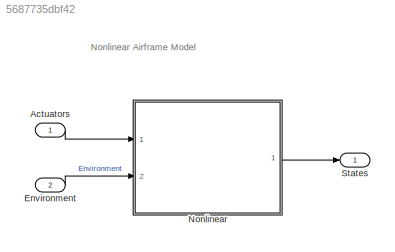
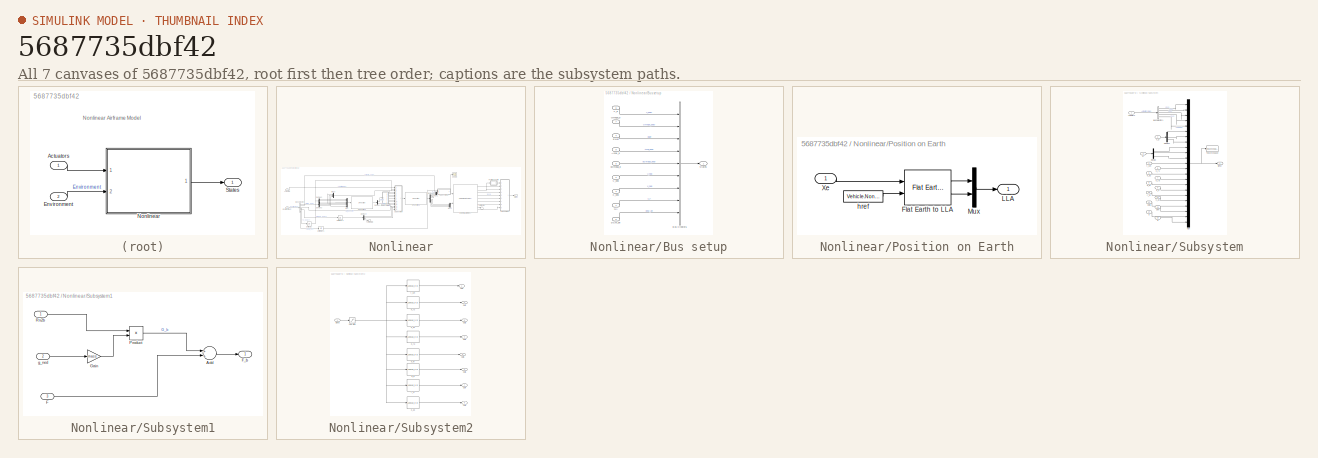
[diagram: thumbnail index - all 7 canvases of the model, root first then tree order]
MODEL slx_5687735dbf42
KIND model
CONFIG AbsTol = auto
CONFIG EnableMultiTasking = on
CONFIG FixedStep = Ts
CONFIG MaxStep = auto
CONFIG MinStep = auto
CONFIG RelTol = 1e-3
CONFIG SampleTimeConstraint = Unconstrained
CONFIG Solver = ode3
CONFIG SolverName = ode3
CONFIG StartTime = 0
CONFIG StopTime = 50
BLOCK [Inport] Actuators
  IconDisplay = Port number
  OutDataTypeStr = Bus: ActuatorsBus
BLOCK [Inport] Environment
  BusOutputAsStruct = on
  IconDisplay = Port number
  OutDataTypeStr = Bus: EnvironmentBus
  Port = 2
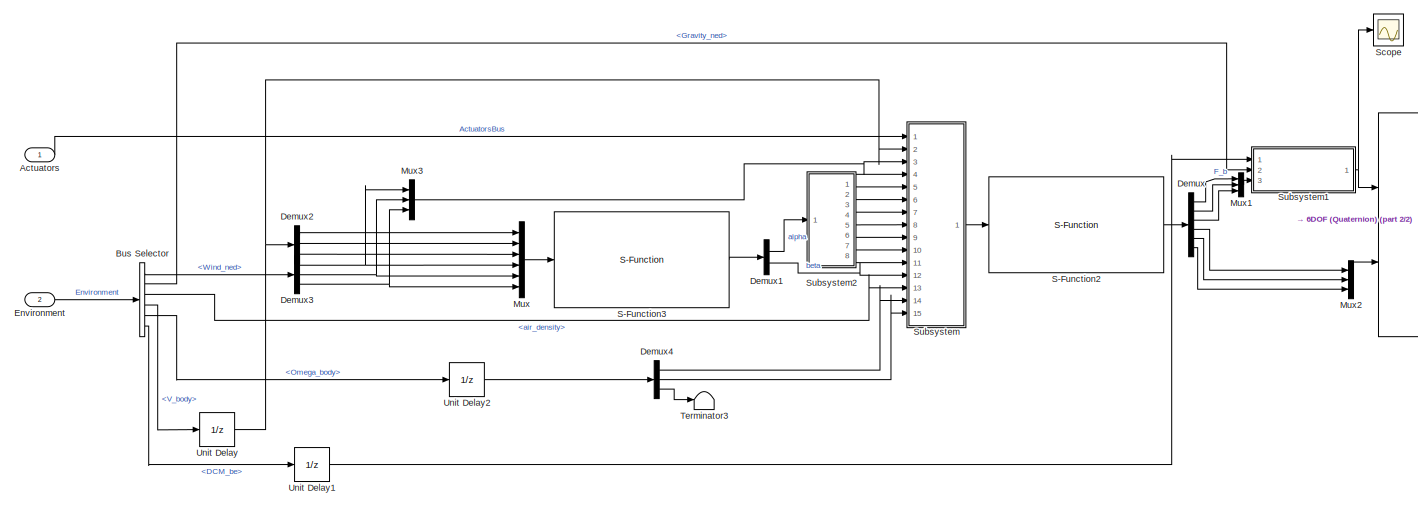
[diagram: Nonlinear - part 1/2, most of the canvas]
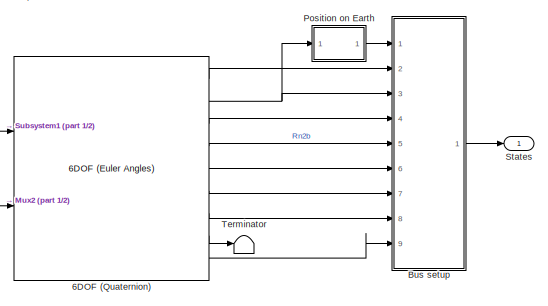
[diagram: Nonlinear - part 2/2, middle right region]
BLOCK [SubSystem] Nonlinear
  MinAlgLoopOccurrences = on
  Ports = [2, 1]
  RequestExecContextInheritance = off
  TreatAsAtomicUnit = on
BLOCK [Reference] Nonlinear/6DOF (Quaternion)  REF=shared6dof/6DOF (Euler Angles)
  Ports = [2, 9]
  SourceBlock = shared6dof/6DOF (Euler Angles)
  SourceProductBaseCode = AE
  SourceProductName = Aerospace Blockset
  SourceType = 6DOF EoM (Body Axis)
BLOCK [Inport] Nonlinear/Actuators
  IconDisplay = Port number
  OutDataTypeStr = Bus: ActuatorsBus
BLOCK [BusSelector] Nonlinear/Bus Selector
  OutputAsBus = off
  OutputSignals = Wind_ned,Gravity_ned,AtmosphereBus.air_density,StatesBus.V_body,StatesBus.Omega_body,StatesBus.DCM_be
  Ports = [1, 6]
BLOCK [SubSystem] Nonlinear/Bus setup
  Ports = [9, 1]
  RequestExecContextInheritance = off
BLOCK [Inport] Nonlinear/Bus setup/Accel_b
  IconDisplay = Port number
  Port = 9
  PortDimensions = 3
BLOCK [BusCreator] Nonlinear/Bus setup/Bus Creator5
  DisplayOption = bar
  InheritFromInputs = on
  Inputs = 9
  NonVirtualBus = on
  OutDataTypeStr = Bus: StatesBus
  Ports = [9, 1]
BLOCK [Inport] Nonlinear/Bus setup/DCM_be
  IconDisplay = Port number
  Port = 5
  PortDimensions = [3 3]
BLOCK [Inport] Nonlinear/Bus setup/Euler
  IconDisplay = Port number
  Port = 4
  PortDimensions = 3
BLOCK [Inport] Nonlinear/Bus setup/LLA
  IconDisplay = Port number
  PortDimensions = 3
BLOCK [Inport] Nonlinear/Bus setup/Omega_b
  IconDisplay = Port number
  Port = 7
  PortDimensions = 3
BLOCK [Outport] Nonlinear/Bus setup/States
  IconDisplay = Port number
BLOCK [Inport] Nonlinear/Bus setup/V_b
  IconDisplay = Port number
  Port = 6
  PortDimensions = 3
BLOCK [Inport] Nonlinear/Bus setup/V_ned
  IconDisplay = Port number
  Port = 2
  PortDimensions = 3
BLOCK [Inport] Nonlinear/Bus setup/X_ned
  IconDisplay = Port number
  Port = 3
  PortDimensions = 3
BLOCK [Inport] Nonlinear/Bus setup/dOmega_b
  IconDisplay = Port number
  Port = 8
  PortDimensions = 3
BLOCK [Demux] Nonlinear/Demux
  DisplayOption = bar
  Outputs = 6
  Ports = [1, 6]
BLOCK [Demux] Nonlinear/Demux1
  DisplayOption = bar
  Outputs = 2
  Ports = [1, 2]
BLOCK [Demux] Nonlinear/Demux2
  DisplayOption = bar
  Outputs = 3
  Ports = [1, 3]
BLOCK [Demux] Nonlinear/Demux3
  DisplayOption = bar
  Outputs = 3
  Ports = [1, 3]
BLOCK [Demux] Nonlinear/Demux4
  DisplayOption = bar
  Outputs = 3
  Ports = [1, 3]
BLOCK [Inport] Nonlinear/Environment
  IconDisplay = Port number
  OutDataTypeStr = Bus: EnvironmentBus
  Port = 2
BLOCK [Mux] Nonlinear/Mux
  DisplayOption = bar
  Inputs = 6
  Ports = [6, 1]
BLOCK [Mux] Nonlinear/Mux1
  DisplayOption = bar
  Inputs = 3
  Ports = [3, 1]
BLOCK [Mux] Nonlinear/Mux2
  DisplayOption = bar
  Inputs = 3
  Ports = [3, 1]
BLOCK [Mux] Nonlinear/Mux3
  DisplayOption = bar
  Inputs = 3
  Ports = [3, 1]
BLOCK [SubSystem] Nonlinear/Position on Earth
  Ports = [1, 1]
  Priority = 1
  RequestExecContextInheritance = off
  TreatAsAtomicUnit = on
BLOCK [Reference] Nonlinear/Position on Earth/Flat Earth to LLA  REF=aerolibtransform2/Flat Earth to LLA
  Ports = [2, 2]
  SourceBlock = aerolibtransform2/Flat Earth to LLA
  SourceProductBaseCode = AE
  SourceProductName = Aerospace Blockset
  SourceType = Flat Earth to LLA
BLOCK [Outport] Nonlinear/Position on Earth/LLA
  IconDisplay = Port number
BLOCK [Mux] Nonlinear/Position on Earth/Mux
  DisplayOption = bar
  Inputs = 2
  Ports = [2, 1]
BLOCK [Inport] Nonlinear/Position on Earth/Xe
  IconDisplay = Port number
BLOCK [Constant] Nonlinear/Position on Earth/href
  Value = Vehicle.Nonlinear.Nonlinear.PositionOnEarth.href
BLOCK [S-Function] Nonlinear/S-Function2
  EnableBusSupport = off
  FunctionName = s_toFM
  Ports = [1, 1]
  SFcnIsStateOwnerBlock = off
  SFunctionDeploymentMode = off
BLOCK [S-Function] Nonlinear/S-Function3
  EnableBusSupport = off
  FunctionName = s_toalphabeta
  Ports = [1, 1]
  SFcnIsStateOwnerBlock = off
  SFunctionDeploymentMode = off
BLOCK [Scope] Nonlinear/Scope
  Floating = off
  NumInputPorts = 1
  Ports = [1]
  ScopeSpecificationString = Simulink.scopes.TimeScopeBlockCfg('CurrentConfiguration', extmgr.ConfigurationSet(extmgr.Configuration('Core','General UI',true),extmgr.Configuration('Core','Source UI',true),extmgr.Configuration('Sources','WiredSimulink',true),extmgr.Configuration('Visuals','Time Domain',true,'SerializedDisplays',{struct('MinYLimReal','-101077623751.39604','MaxYLimReal','157971719491.96811','YLabelReal','','MinYL...<+1518ch>
BLOCK [Outport] Nonlinear/States
  IconDisplay = Port number
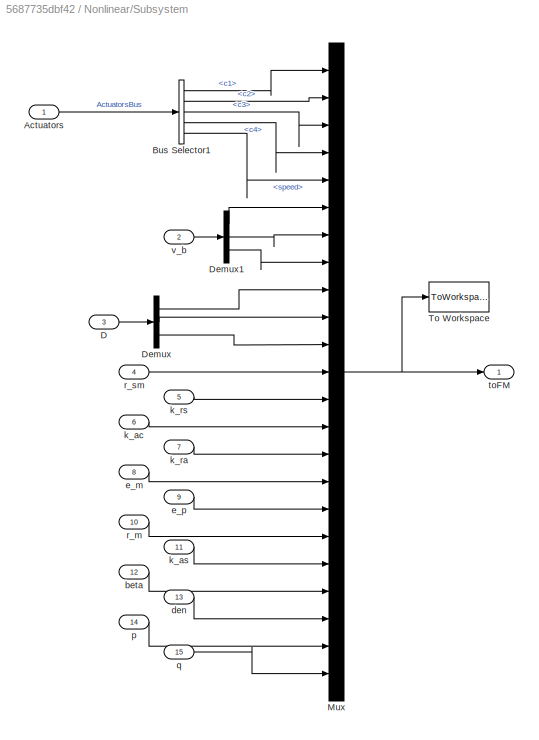
BLOCK [SubSystem] Nonlinear/Subsystem
  Ports = [15, 1]
  RequestExecContextInheritance = off
BLOCK [Inport] Nonlinear/Subsystem/Actuators
  IconDisplay = Port number
  OutDataTypeStr = Bus: ActuatorsBus
BLOCK [BusSelector] Nonlinear/Subsystem/Bus Selector1
  OutputAsBus = off
  OutputSignals = c1,c2,c3,c4,speed
  Ports = [1, 5]
BLOCK [Inport] Nonlinear/Subsystem/D
  IconDisplay = Port number
  Port = 3
BLOCK [Demux] Nonlinear/Subsystem/Demux
  DisplayOption = bar
  Outputs = 3
  Ports = [1, 3]
BLOCK [Demux] Nonlinear/Subsystem/Demux1
  DisplayOption = bar
  Outputs = 3
  Ports = [1, 3]
BLOCK [Mux] Nonlinear/Subsystem/Mux
  DisplayOption = bar
  Inputs = 23
  Ports = [23, 1]
BLOCK [ToWorkspace] Nonlinear/Subsystem/To Workspace
  FixptAsFi = on
  MaxDataPoints = inf
  Ports = [1]
  SampleTime = -1
  Save2DSignal = 3-D array (concatenate along third dimension)
  SaveFormat = Timeseries
  VariableName = simout
BLOCK [Inport] Nonlinear/Subsystem/beta
  IconDisplay = Port number
  Port = 12
BLOCK [Inport] Nonlinear/Subsystem/den
  IconDisplay = Port number
  Port = 13
BLOCK [Inport] Nonlinear/Subsystem/e_m
  IconDisplay = Port number
  Port = 8
BLOCK [Inport] Nonlinear/Subsystem/e_p
  IconDisplay = Port number
  Port = 9
BLOCK [Inport] Nonlinear/Subsystem/k_ac
  IconDisplay = Port number
  Port = 6
BLOCK [Inport] Nonlinear/Subsystem/k_as
  IconDisplay = Port number
  Port = 11
BLOCK [Inport] Nonlinear/Subsystem/k_ra
  IconDisplay = Port number
  Port = 7
BLOCK [Inport] Nonlinear/Subsystem/k_rs
  IconDisplay = Port number
  Port = 5
BLOCK [Inport] Nonlinear/Subsystem/p
  IconDisplay = Port number
  Port = 14
BLOCK [Inport] Nonlinear/Subsystem/q
  IconDisplay = Port number
  Port = 15
BLOCK [Inport] Nonlinear/Subsystem/r_m
  IconDisplay = Port number
  Port = 10
BLOCK [Inport] Nonlinear/Subsystem/r_sm
  IconDisplay = Port number
  Port = 4
BLOCK [Outport] Nonlinear/Subsystem/toFM
  IconDisplay = Port number
BLOCK [Inport] Nonlinear/Subsystem/v_b
  IconDisplay = Port number
  Port = 2
BLOCK [SubSystem] Nonlinear/Subsystem1
  Ports = [3, 1]
  RequestExecContextInheritance = off
BLOCK [Sum] Nonlinear/Subsystem1/Add
  InputSameDT = off
  OutDataTypeStr = Inherit: Inherit via internal rule
  Ports = [2, 1]
  SaturateOnIntegerOverflow = off
BLOCK [Inport] Nonlinear/Subsystem1/F
  IconDisplay = Port number
  Port = 3
BLOCK [Outport] Nonlinear/Subsystem1/F_b
  IconDisplay = Port number
BLOCK [Gain] Nonlinear/Subsystem1/Gain
  Gain = mass
  OutDataTypeStr = Inherit: Inherit via internal rule
  ParamDataTypeStr = Inherit: Inherit via internal rule
  SaturateOnIntegerOverflow = off
BLOCK [Product] Nonlinear/Subsystem1/Product
  InputSameDT = off
  Multiplication = Matrix(*)
  OutDataTypeStr = Inherit: Inherit via internal rule
  Ports = [2, 1]
  RndMeth = Floor
  SaturateOnIntegerOverflow = off
BLOCK [Inport] Nonlinear/Subsystem1/Rn2b
  IconDisplay = Port number
BLOCK [Inport] Nonlinear/Subsystem1/g_ned
  IconDisplay = Port number
  Port = 2
BLOCK [SubSystem] Nonlinear/Subsystem2
  Ports = [1, 8]
  RequestExecContextInheritance = off
BLOCK [Outport] Nonlinear/Subsystem2/Out1
  IconDisplay = Port number
BLOCK [Outport] Nonlinear/Subsystem2/Out2
  IconDisplay = Port number
  Port = 2
BLOCK [Outport] Nonlinear/Subsystem2/Out3
  IconDisplay = Port number
  Port = 3
BLOCK [Outport] Nonlinear/Subsystem2/Out4
  IconDisplay = Port number
  Port = 4
BLOCK [Outport] Nonlinear/Subsystem2/Out5
  IconDisplay = Port number
  Port = 5
BLOCK [Outport] Nonlinear/Subsystem2/Out6
  IconDisplay = Port number
  Port = 6
BLOCK [Outport] Nonlinear/Subsystem2/Out7
  IconDisplay = Port number
  Port = 7
BLOCK [Outport] Nonlinear/Subsystem2/Out8
  IconDisplay = Port number
  Port = 8
BLOCK [Saturate] Nonlinear/Subsystem2/Saturation
  InputPortMap = u0
  LowerLimit = 0
  Ports = [1, 1]
  UpperLimit = 3.14159
BLOCK [Inport] Nonlinear/Subsystem2/alpha
  IconDisplay = Port number
BLOCK [Lookup_n-D] Nonlinear/Subsystem2/e_m
  BreakpointsForDimension1 = e_m_X
  DiagnosticForOutOfRangeInput = Warning
  ExtrapMethod = Clip
  InternalRulePriority = Speed
  NumberOfTableDimensions = 1
  Ports = [1, 1]
  RndMeth = Simplest
  Table = e_m_Y
BLOCK [Lookup_n-D] Nonlinear/Subsystem2/e_p
  BreakpointsForDimension1 = e_p_X
  DiagnosticForOutOfRangeInput = Warning
  ExtrapMethod = Clip
  InternalRulePriority = Speed
  NumberOfTableDimensions = 1
  Ports = [1, 1]
  RndMeth = Simplest
  Table = e_p_Y
BLOCK [Lookup_n-D] Nonlinear/Subsystem2/k_ac
  BreakpointsForDimension1 = k_ac_X
  DiagnosticForOutOfRangeInput = Warning
  ExtrapMethod = Clip
  InternalRulePriority = Speed
  NumberOfTableDimensions = 1
  Ports = [1, 1]
  RndMeth = Simplest
  Table = k_ac_Y
BLOCK [Lookup_n-D] Nonlinear/Subsystem2/k_as
  BreakpointsForDimension1 = k_as_X
  DiagnosticForOutOfRangeInput = Warning
  ExtrapMethod = Clip
  InternalRulePriority = Speed
  NumberOfTableDimensions = 1
  Ports = [1, 1]
  RndMeth = Simplest
  Table = k_as_Y
BLOCK [Lookup_n-D] Nonlinear/Subsystem2/k_ra
  BreakpointsForDimension1 = k_ra_X
  DiagnosticForOutOfRangeInput = Warning
  ExtrapMethod = Clip
  InternalRulePriority = Speed
  NumberOfTableDimensions = 1
  Ports = [1, 1]
  RndMeth = Simplest
  Table = k_ra_Y
BLOCK [Lookup_n-D] Nonlinear/Subsystem2/k_rs 
  BreakpointsForDimension1 = k_rs_X
  DiagnosticForOutOfRangeInput = Warning
  ExtrapMethod = Clip
  InternalRulePriority = Speed
  NumberOfTableDimensions = 1
  Ports = [1, 1]
  RndMeth = Simplest
  Table = k_rs_Y
BLOCK [Lookup_n-D] Nonlinear/Subsystem2/r_m
  BreakpointsForDimension1 = r_m_X
  DiagnosticForOutOfRangeInput = Warning
  ExtrapMethod = Clip
  InternalRulePriority = Speed
  NumberOfTableDimensions = 1
  Ports = [1, 1]
  RndMeth = Simplest
  Table = r_m_Y
BLOCK [Lookup_n-D] Nonlinear/Subsystem2/r_sm
  BreakpointsForDimension1 = r_sm_X
  DiagnosticForOutOfRangeInput = Warning
  ExtrapMethod = Clip
  InternalRulePriority = Speed
  NumberOfTableDimensions = 1
  Ports = [1, 1]
  RndMeth = Simplest
  Table = r_sm_Y
BLOCK [Terminator] Nonlinear/Terminator
BLOCK [Terminator] Nonlinear/Terminator3
BLOCK [UnitDelay] Nonlinear/Unit Delay
  InputProcessing = Elements as channels (sample based)
  SampleTime = -1
BLOCK [UnitDelay] Nonlinear/Unit Delay1
  InputProcessing = Elements as channels (sample based)
  SampleTime = -1
BLOCK [UnitDelay] Nonlinear/Unit Delay2
  InputProcessing = Elements as channels (sample based)
  SampleTime = -1
BLOCK [Outport] States
  BusOutputAsStruct = on
  IconDisplay = Port number
  OutDataTypeStr = Bus: StatesBus
ANNOTATION (root): Nonlinear Airframe Model
LINE Actuators:1 -> Nonlinear:1
LINE Environment:1 -> Nonlinear:2
LINE Nonlinear/6DOF (Quaternion):1 -> Nonlinear/Bus setup:2
NET Nonlinear/6DOF (Quaternion):2 -> Nonlinear/Bus setup:3, Nonlinear/Position on Earth:1
LINE Nonlinear/6DOF (Quaternion):3 -> Nonlinear/Bus setup:4
LINE Nonlinear/6DOF (Quaternion):4 -> Nonlinear/Bus setup:5
LINE Nonlinear/6DOF (Quaternion):5 -> Nonlinear/Bus setup:6
LINE Nonlinear/6DOF (Quaternion):6 -> Nonlinear/Bus setup:7
LINE Nonlinear/6DOF (Quaternion):7 -> Nonlinear/Bus setup:8
LINE Nonlinear/6DOF (Quaternion):8 -> Nonlinear/Terminator:1
LINE Nonlinear/6DOF (Quaternion):9 -> Nonlinear/Bus setup:9
LINE Nonlinear/Actuators:1 -> Nonlinear/Subsystem:1
LINE Nonlinear/Bus Selector:1 -> Nonlinear/Demux3:1
LINE Nonlinear/Bus Selector:2 -> Nonlinear/Subsystem1:2
LINE Nonlinear/Bus Selector:3 -> Nonlinear/Subsystem:13
LINE Nonlinear/Bus Selector:4 -> Nonlinear/Unit Delay:1
LINE Nonlinear/Bus Selector:5 -> Nonlinear/Unit Delay2:1
LINE Nonlinear/Bus Selector:6 -> Nonlinear/Unit Delay1:1
LINE Nonlinear/Bus setup/Accel_b:1 -> Nonlinear/Bus setup/Bus Creator5:4
LINE Nonlinear/Bus setup/Bus Creator5:1 -> Nonlinear/Bus setup/States:1
LINE Nonlinear/Bus setup/DCM_be:1 -> Nonlinear/Bus setup/Bus Creator5:9
LINE Nonlinear/Bus setup/Euler:1 -> Nonlinear/Bus setup/Bus Creator5:3
LINE Nonlinear/Bus setup/LLA:1 -> Nonlinear/Bus setup/Bus Creator5:8
LINE Nonlinear/Bus setup/Omega_b:1 -> Nonlinear/Bus setup/Bus Creator5:2
LINE Nonlinear/Bus setup/V_b:1 -> Nonlinear/Bus setup/Bus Creator5:1
LINE Nonlinear/Bus setup/V_ned:1 -> Nonlinear/Bus setup/Bus Creator5:6
LINE Nonlinear/Bus setup/X_ned:1 -> Nonlinear/Bus setup/Bus Creator5:7
LINE Nonlinear/Bus setup/dOmega_b:1 -> Nonlinear/Bus setup/Bus Creator5:5
LINE Nonlinear/Bus setup:1 -> Nonlinear/States:1
LINE Nonlinear/Demux1:1 -> Nonlinear/Subsystem2:1
LINE Nonlinear/Demux1:2 -> Nonlinear/Subsystem:12
LINE Nonlinear/Demux2:1 -> Nonlinear/Mux:1
LINE Nonlinear/Demux2:2 -> Nonlinear/Mux:2
LINE Nonlinear/Demux2:3 -> Nonlinear/Mux:3
NET Nonlinear/Demux3:1 -> Nonlinear/Mux3:1, Nonlinear/Mux:4
NET Nonlinear/Demux3:2 -> Nonlinear/Mux3:2, Nonlinear/Mux:5
NET Nonlinear/Demux3:3 -> Nonlinear/Mux3:3, Nonlinear/Mux:6
LINE Nonlinear/Demux4:1 -> Nonlinear/Subsystem:14
LINE Nonlinear/Demux4:2 -> Nonlinear/Subsystem:15
LINE Nonlinear/Demux4:3 -> Nonlinear/Terminator3:1
LINE Nonlinear/Demux:1 -> Nonlinear/Mux1:1
LINE Nonlinear/Demux:2 -> Nonlinear/Mux1:2
LINE Nonlinear/Demux:3 -> Nonlinear/Mux1:3
LINE Nonlinear/Demux:4 -> Nonlinear/Mux2:1
LINE Nonlinear/Demux:5 -> Nonlinear/Mux2:2
LINE Nonlinear/Demux:6 -> Nonlinear/Mux2:3
LINE Nonlinear/Environment:1 -> Nonlinear/Bus Selector:1
LINE Nonlinear/Mux1:1 -> Nonlinear/Subsystem1:3
LINE Nonlinear/Mux2:1 -> Nonlinear/6DOF (Quaternion):2
LINE Nonlinear/Mux3:1 -> Nonlinear/Subsystem:3
LINE Nonlinear/Mux:1 -> Nonlinear/S-Function3:1
LINE Nonlinear/Position on Earth/Flat Earth to LLA:1 -> Nonlinear/Position on Earth/Mux:1
LINE Nonlinear/Position on Earth/Flat Earth to LLA:2 -> Nonlinear/Position on Earth/Mux:2
LINE Nonlinear/Position on Earth/Mux:1 -> Nonlinear/Position on Earth/LLA:1
LINE Nonlinear/Position on Earth/Xe:1 -> Nonlinear/Position on Earth/Flat Earth to LLA:1
LINE Nonlinear/Position on Earth/href:1 -> Nonlinear/Position on Earth/Flat Earth to LLA:2
LINE Nonlinear/Position on Earth:1 -> Nonlinear/Bus setup:1
LINE Nonlinear/S-Function2:1 -> Nonlinear/Demux:1
LINE Nonlinear/S-Function3:1 -> Nonlinear/Demux1:1
LINE Nonlinear/Subsystem/Actuators:1 -> Nonlinear/Subsystem/Bus Selector1:1
LINE Nonlinear/Subsystem/Bus Selector1:1 -> Nonlinear/Subsystem/Mux:1
LINE Nonlinear/Subsystem/Bus Selector1:2 -> Nonlinear/Subsystem/Mux:2
LINE Nonlinear/Subsystem/Bus Selector1:3 -> Nonlinear/Subsystem/Mux:3
LINE Nonlinear/Subsystem/Bus Selector1:4 -> Nonlinear/Subsystem/Mux:4
LINE Nonlinear/Subsystem/Bus Selector1:5 -> Nonlinear/Subsystem/Mux:5
LINE Nonlinear/Subsystem/D:1 -> Nonlinear/Subsystem/Demux:1
LINE Nonlinear/Subsystem/Demux1:1 -> Nonlinear/Subsystem/Mux:6
LINE Nonlinear/Subsystem/Demux1:2 -> Nonlinear/Subsystem/Mux:7
LINE Nonlinear/Subsystem/Demux1:3 -> Nonlinear/Subsystem/Mux:8
LINE Nonlinear/Subsystem/Demux:1 -> Nonlinear/Subsystem/Mux:9
LINE Nonlinear/Subsystem/Demux:2 -> Nonlinear/Subsystem/Mux:10
LINE Nonlinear/Subsystem/Demux:3 -> Nonlinear/Subsystem/Mux:11
NET Nonlinear/Subsystem/Mux:1 -> Nonlinear/Subsystem/To Workspace:1, Nonlinear/Subsystem/toFM:1
LINE Nonlinear/Subsystem/beta:1 -> Nonlinear/Subsystem/Mux:20
LINE Nonlinear/Subsystem/den:1 -> Nonlinear/Subsystem/Mux:21
LINE Nonlinear/Subsystem/e_m:1 -> Nonlinear/Subsystem/Mux:16
LINE Nonlinear/Subsystem/e_p:1 -> Nonlinear/Subsystem/Mux:17
LINE Nonlinear/Subsystem/k_ac:1 -> Nonlinear/Subsystem/Mux:14
LINE Nonlinear/Subsystem/k_as:1 -> Nonlinear/Subsystem/Mux:19
LINE Nonlinear/Subsystem/k_ra:1 -> Nonlinear/Subsystem/Mux:15
LINE Nonlinear/Subsystem/k_rs:1 -> Nonlinear/Subsystem/Mux:13
LINE Nonlinear/Subsystem/p:1 -> Nonlinear/Subsystem/Mux:22
LINE Nonlinear/Subsystem/q:1 -> Nonlinear/Subsystem/Mux:23
LINE Nonlinear/Subsystem/r_m:1 -> Nonlinear/Subsystem/Mux:18
LINE Nonlinear/Subsystem/r_sm:1 -> Nonlinear/Subsystem/Mux:12
LINE Nonlinear/Subsystem/v_b:1 -> Nonlinear/Subsystem/Demux1:1
LINE Nonlinear/Subsystem1/Add:1 -> Nonlinear/Subsystem1/F_b:1
LINE Nonlinear/Subsystem1/F:1 -> Nonlinear/Subsystem1/Add:2
LINE Nonlinear/Subsystem1/Gain:1 -> Nonlinear/Subsystem1/Product:2
LINE Nonlinear/Subsystem1/Product:1 -> Nonlinear/Subsystem1/Add:1
LINE Nonlinear/Subsystem1/Rn2b:1 -> Nonlinear/Subsystem1/Product:1
LINE Nonlinear/Subsystem1/g_ned:1 -> Nonlinear/Subsystem1/Gain:1
NET Nonlinear/Subsystem1:1 -> Nonlinear/6DOF (Quaternion):1, Nonlinear/Scope:1
NET Nonlinear/Subsystem2/Saturation:1 -> Nonlinear/Subsystem2/e_m:1, Nonlinear/Subsystem2/e_p:1, Nonlinear/Subsystem2/k_ac:1, Nonlinear/Subsystem2/k_as:1, Nonlinear/Subsystem2/k_ra:1, Nonlinear/Subsystem2/k_rs :1, Nonlinear/Subsystem2/r_m:1, Nonlinear/Subsystem2/r_sm:1
LINE Nonlinear/Subsystem2/alpha:1 -> Nonlinear/Subsystem2/Saturation:1
LINE Nonlinear/Subsystem2/e_m:1 -> Nonlinear/Subsystem2/Out5:1
LINE Nonlinear/Subsystem2/e_p:1 -> Nonlinear/Subsystem2/Out6:1
LINE Nonlinear/Subsystem2/k_ac:1 -> Nonlinear/Subsystem2/Out3:1
LINE Nonlinear/Subsystem2/k_as:1 -> Nonlinear/Subsystem2/Out8:1
LINE Nonlinear/Subsystem2/k_ra:1 -> Nonlinear/Subsystem2/Out4:1
LINE Nonlinear/Subsystem2/k_rs :1 -> Nonlinear/Subsystem2/Out2:1
LINE Nonlinear/Subsystem2/r_m:1 -> Nonlinear/Subsystem2/Out7:1
LINE Nonlinear/Subsystem2/r_sm:1 -> Nonlinear/Subsystem2/Out1:1
LINE Nonlinear/Subsystem2:1 -> Nonlinear/Subsystem:4
LINE Nonlinear/Subsystem2:2 -> Nonlinear/Subsystem:5
LINE Nonlinear/Subsystem2:3 -> Nonlinear/Subsystem:6
LINE Nonlinear/Subsystem2:4 -> Nonlinear/Subsystem:7
LINE Nonlinear/Subsystem2:5 -> Nonlinear/Subsystem:8
LINE Nonlinear/Subsystem2:6 -> Nonlinear/Subsystem:9
LINE Nonlinear/Subsystem2:7 -> Nonlinear/Subsystem:10
LINE Nonlinear/Subsystem2:8 -> Nonlinear/Subsystem:11
LINE Nonlinear/Subsystem:1 -> Nonlinear/S-Function2:1
LINE Nonlinear/Unit Delay1:1 -> Nonlinear/Subsystem1:1
LINE Nonlinear/Unit Delay2:1 -> Nonlinear/Demux4:1
NET Nonlinear/Unit Delay:1 -> Nonlinear/Demux2:1, Nonlinear/Subsystem:2
LINE Nonlinear:1 -> States:1
note: NET lines group one-source signal fan-out (src -> all destinations, sorted); 1:1 wires keep LINE
